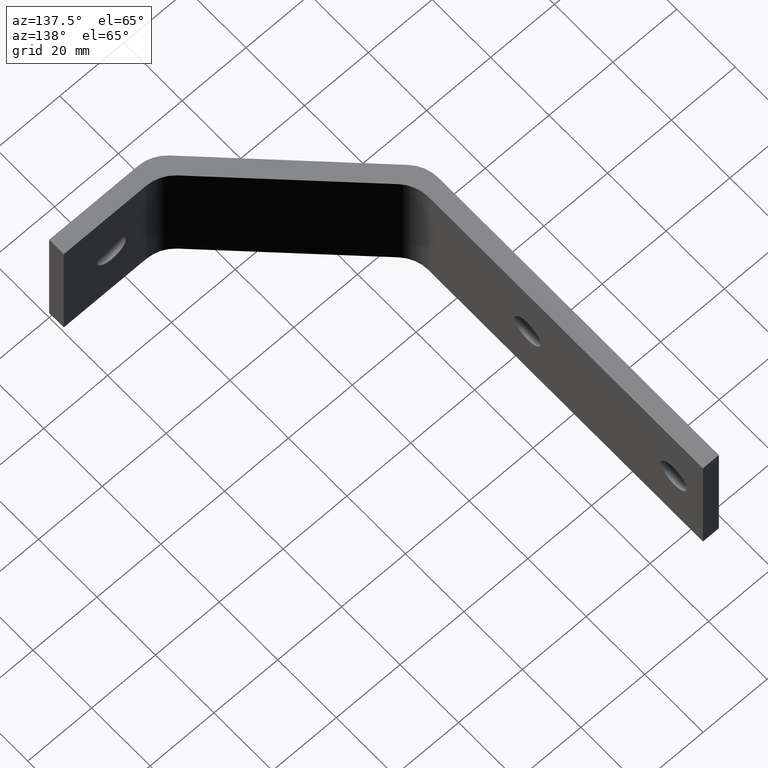
[diagram: clean part render]
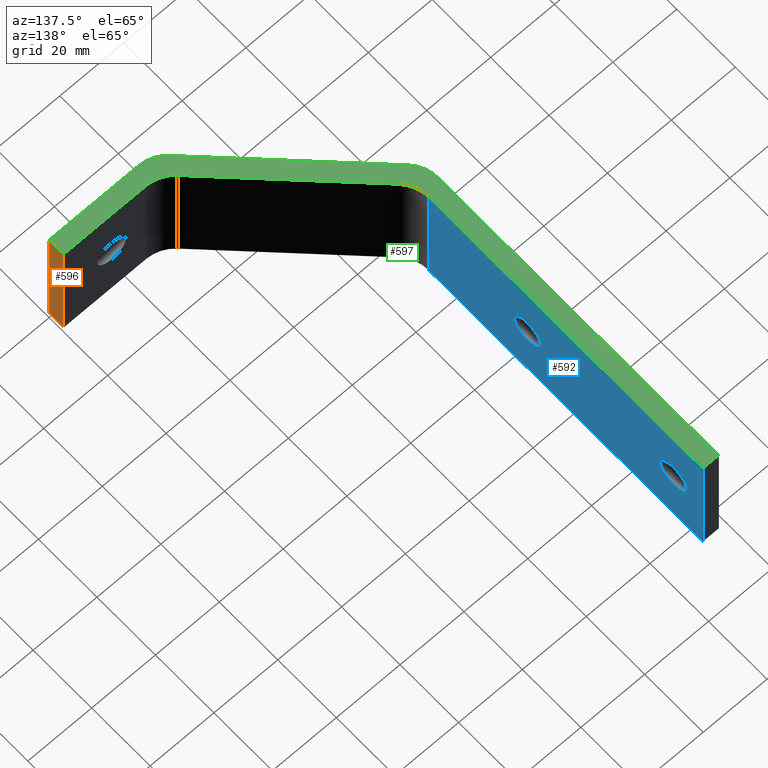
[diagram: same view with three faces highlighted in distinct colors, each labeled with its STEP entity id]
A machine part, auxiliary view with three faces highlighted in distinct colors.
Their STEP definitions:

[orange] entity #596 — the highlighted planar face has unit normal (-1, 0, 0).
#23 = VERTEX_POINT ( 'NONE', #228 ) ;
#24 = VERTEX_POINT ( 'NONE', #229 ) ;
#25 = VERTEX_POINT ( 'NONE', #230 ) ;
#26 = VERTEX_POINT ( 'NONE', #231 ) ;
#104 = AXIS2_PLACEMENT_3D ( 'NONE', #673, #674, #675 ) ;
#123 = EDGE_CURVE ( 'NONE', #26, #23, #390, .T. ) ;
#124 = EDGE_CURVE ( 'NONE', #23, #24, #388, .T. ) ;
#140 = EDGE_CURVE ( 'NONE', #25, #24, #357, .T. ) ;
#161 = EDGE_CURVE ( 'NONE', #25, #26, #313, .T. ) ;
#178 = CARTESIAN_POINT ( 'NONE',  ( 0.0000000000000000000, 5.000000000000000000, 20.00000000000000000 ) ) ;
#179 = DIRECTION ( 'NONE',  ( 0.0000000000000000000, 0.0000000000000000000, 1.000000000000000000 ) ) ;
#200 = DIRECTION ( 'NONE',  ( -0.0000000000000000000, -0.0000000000000000000, -1.000000000000000000 ) ) ;
#228 = CARTESIAN_POINT ( 'NONE',  ( -1.734723475976807100E-015, 0.0000000000000000000, 40.00000000000000000 ) ) ;
#229 = CARTESIAN_POINT ( 'NONE',  ( -1.734723475976807100E-015, 0.0000000000000000000, -1.156482317317871300E-015 ) ) ;
#230 = CARTESIAN_POINT ( 'NONE',  ( 0.0000000000000000000, 5.000000000000001800, 0.0000000000000000000 ) ) ;
#231 = CARTESIAN_POINT ( 'NONE',  ( 0.0000000000000000000, 5.000000000000001800, 40.00000000000000000 ) ) ;
#281 = FACE_OUTER_BOUND ( 'NONE', #293, .T. ) ;
#293 = EDGE_LOOP ( 'NONE', ( #427, #429, #430, #431 ) ) ;
#311 = VECTOR ( 'NONE', #179, 1000.000000000000000 ) ;
#313 = LINE ( 'NONE', #178, #311 ) ;
#355 = VECTOR ( 'NONE', #702, 1000.000000000000000 ) ;
#357 = LINE ( 'NONE', #701, #355 ) ;
#387 = VECTOR ( 'NONE', #200, 1000.000000000000000 ) ;
#388 = LINE ( 'NONE', #572, #387 ) ;
#389 = VECTOR ( 'NONE', #571, 1000.000000000000000 ) ;
#390 = LINE ( 'NONE', #570, #389 ) ;
#427 = ORIENTED_EDGE ( 'NONE', *, *, #161, .T. ) ;
#429 = ORIENTED_EDGE ( 'NONE', *, *, #123, .T. ) ;
#430 = ORIENTED_EDGE ( 'NONE', *, *, #124, .T. ) ;
#431 = ORIENTED_EDGE ( 'NONE', *, *, #140, .F. ) ;
#570 = CARTESIAN_POINT ( 'NONE',  ( 0.0000000000000000000, 72.50000000000000000, 40.00000000000000000 ) ) ;
#571 = DIRECTION ( 'NONE',  ( -0.0000000000000000000, -1.000000000000000000, -0.0000000000000000000 ) ) ;
#572 = CARTESIAN_POINT ( 'NONE',  ( 0.0000000000000000000, 0.0000000000000000000, 20.00000000000000000 ) ) ;
#596 = ADVANCED_FACE ( 'NONE', ( #281 ), #672, .F. ) ;
#672 = PLANE ( 'NONE',  #104 ) ;
#673 = CARTESIAN_POINT ( 'NONE',  ( 0.0000000000000000000, 0.0000000000000000000, 0.0000000000000000000 ) ) ;
#674 = DIRECTION ( 'NONE',  ( -1.000000000000000000, 0.0000000000000000000, 0.0000000000000000000 ) ) ;
#675 = DIRECTION ( 'NONE',  ( 0.0000000000000000000, 0.0000000000000000000, 1.000000000000000000 ) ) ;
#701 = CARTESIAN_POINT ( 'NONE',  ( 0.0000000000000000000, 72.50000000000000000, 0.0000000000000000000 ) ) ;
#702 = DIRECTION ( 'NONE',  ( -0.0000000000000000000, -1.000000000000000000, -0.0000000000000000000 ) ) ;

[blue] entity #592 — the highlighted planar face has unit normal (-1, 0, 0).
#1 = DIRECTION ( 'NONE',  ( 1.000000000000000000, -1.541976423090493900E-015, 0.0000000000000000000 ) ) ;
#2 = DIRECTION ( 'NONE',  ( 0.0000000000000000000, 1.000000000000000000, 0.0000000000000000000 ) ) ;
#9 = VERTEX_POINT ( 'NONE', #547 ) ;
#10 = VERTEX_POINT ( 'NONE', #548 ) ;
#16 = VERTEX_POINT ( 'NONE', #554 ) ;
#17 = VERTEX_POINT ( 'NONE', #555 ) ;
#19 = VERTEX_POINT ( 'NONE', #224 ) ;
#53 = AXIS2_PLACEMENT_3D ( 'NONE', #211, #212, #213 ) ;
#54 = AXIS2_PLACEMENT_3D ( 'NONE', #208, #209, #210 ) ;
#57 = AXIS2_PLACEMENT_3D ( 'NONE', #556, #557, #558 ) ;
#63 = AXIS2_PLACEMENT_3D ( 'NONE', #531, #1, #2 ) ;
#64 = EDGE_CURVE ( 'NONE', #9, #537, #415, .T. ) ;
#73 = EDGE_CURVE ( 'NONE', #538, #539, #401, .T. ) ;
#108 = AXIS2_PLACEMENT_3D ( 'NONE', #659, #660, #661 ) ;
#128 = EDGE_CURVE ( 'NONE', #539, #538, #377, .T. ) ;
#129 = EDGE_CURVE ( 'NONE', #537, #9, #376, .T. ) ;
#146 = EDGE_CURVE ( 'NONE', #17, #10, #342, .T. ) ;
#151 = EDGE_CURVE ( 'NONE', #16, #19, #335, .T. ) ;
#157 = EDGE_CURVE ( 'NONE', #10, #16, #323, .T. ) ;
#158 = EDGE_CURVE ( 'NONE', #17, #19, #320, .T. ) ;
#170 = CARTESIAN_POINT ( 'NONE',  ( -71.99999999499999600, 72.50000000000000000, 0.0000000000000000000 ) ) ;
#171 = DIRECTION ( 'NONE',  ( -0.0000000000000000000, -1.000000000000000000, -0.0000000000000000000 ) ) ;
#172 = CARTESIAN_POINT ( 'NONE',  ( -71.99999999499999600, 72.50000000000000000, 40.00000000000000000 ) ) ;
#173 = DIRECTION ( 'NONE',  ( -0.0000000000000000000, -1.000000000000000000, -0.0000000000000000000 ) ) ;
#190 = CARTESIAN_POINT ( 'NONE',  ( -72.00000000000001400, 139.5000000000000000, 20.00000000000000000 ) ) ;
#191 = CARTESIAN_POINT ( 'NONE',  ( -72.00000000000000000, 89.50000000000000000, 20.00000000000000000 ) ) ;
#192 = CARTESIAN_POINT ( 'NONE',  ( -72.00000000000002800, 80.49999999999998600, 20.00000000000000000 ) ) ;
#208 = CARTESIAN_POINT ( 'NONE',  ( -72.00000000000001400, 84.99999999999998600, 20.00000000000000000 ) ) ;
#209 = DIRECTION ( 'NONE',  ( 1.000000000000000000, -1.541976423090496200E-015, 0.0000000000000000000 ) ) ;
#210 = DIRECTION ( 'NONE',  ( 3.083952846180988100E-015, 1.000000000000000000, 0.0000000000000000000 ) ) ;
#211 = CARTESIAN_POINT ( 'NONE',  ( -72.00000000000001400, 135.0000000000000000, 20.00000000000000000 ) ) ;
#212 = DIRECTION ( 'NONE',  ( 1.000000000000000000, -1.541976423090493900E-015, 0.0000000000000000000 ) ) ;
#213 = DIRECTION ( 'NONE',  ( 0.0000000000000000000, 1.000000000000000000, 0.0000000000000000000 ) ) ;
#224 = CARTESIAN_POINT ( 'NONE',  ( -71.99999999749999800, 51.14213562194898100, 40.00000000000000000 ) ) ;
#297 = FACE_OUTER_BOUND ( 'NONE', #528, .T. ) ;
#298 = FACE_BOUND ( 'NONE', #527, .T. ) ;
#299 = FACE_BOUND ( 'NONE', #526, .T. ) ;
#319 = VECTOR ( 'NONE', #173, 1000.000000000000000 ) ;
#320 = LINE ( 'NONE', #172, #319 ) ;
#321 = VECTOR ( 'NONE', #171, 1000.000000000000000 ) ;
#323 = LINE ( 'NONE', #170, #321 ) ;
#334 = VECTOR ( 'NONE', #727, 1000.000000000000000 ) ;
#335 = LINE ( 'NONE', #726, #334 ) ;
#341 = VECTOR ( 'NONE', #714, 1000.000000000000000 ) ;
#342 = LINE ( 'NONE', #713, #341 ) ;
#376 = CIRCLE ( 'NONE', #53, 4.500000000000003600 ) ;
#377 = CIRCLE ( 'NONE', #54, 4.500000000000003600 ) ;
#401 = CIRCLE ( 'NONE', #57, 4.500000000000003600 ) ;
#415 = CIRCLE ( 'NONE', #63, 4.500000000000003600 ) ;
#512 = ORIENTED_EDGE ( 'NONE', *, *, #158, .T. ) ;
#513 = ORIENTED_EDGE ( 'NONE', *, *, #146, .F. ) ;
#514 = ORIENTED_EDGE ( 'NONE', *, *, #157, .F. ) ;
#515 = ORIENTED_EDGE ( 'NONE', *, *, #151, .F. ) ;
#516 = ORIENTED_EDGE ( 'NONE', *, *, #128, .F. ) ;
#517 = ORIENTED_EDGE ( 'NONE', *, *, #73, .F. ) ;
#518 = ORIENTED_EDGE ( 'NONE', *, *, #64, .F. ) ;
#519 = ORIENTED_EDGE ( 'NONE', *, *, #129, .F. ) ;
#526 = EDGE_LOOP ( 'NONE', ( #519, #518 ) ) ;
#527 = EDGE_LOOP ( 'NONE', ( #517, #516 ) ) ;
#528 = EDGE_LOOP ( 'NONE', ( #515, #514, #513, #512 ) ) ;
#531 = CARTESIAN_POINT ( 'NONE',  ( -72.00000000000001400, 135.0000000000000000, 20.00000000000000000 ) ) ;
#537 = VERTEX_POINT ( 'NONE', #190 ) ;
#538 = VERTEX_POINT ( 'NONE', #191 ) ;
#539 = VERTEX_POINT ( 'NONE', #192 ) ;
#547 = CARTESIAN_POINT ( 'NONE',  ( -72.00000000000001400, 130.5000000000000000, 20.00000000000000000 ) ) ;
#548 = CARTESIAN_POINT ( 'NONE',  ( -71.99999999666667300, 145.0000000000000000, 0.0000000000000000000 ) ) ;
#554 = CARTESIAN_POINT ( 'NONE',  ( -71.99999999749999800, 51.14213562194898100, 0.0000000000000000000 ) ) ;
#555 = CARTESIAN_POINT ( 'NONE',  ( -71.99999999750001200, 145.0000000000000000, 40.00000000000000700 ) ) ;
#556 = CARTESIAN_POINT ( 'NONE',  ( -72.00000000000001400, 84.99999999999998600, 20.00000000000000000 ) ) ;
#557 = DIRECTION ( 'NONE',  ( 1.000000000000000000, -1.541976423090496200E-015, 0.0000000000000000000 ) ) ;
#558 = DIRECTION ( 'NONE',  ( 3.083952846180988100E-015, 1.000000000000000000, 0.0000000000000000000 ) ) ;
#592 = ADVANCED_FACE ( 'NONE', ( #299, #298, #297 ), #658, .F. ) ;
#658 = PLANE ( 'NONE',  #108 ) ;
#659 = CARTESIAN_POINT ( 'NONE',  ( -72.00000000000001400, 51.14213562400001900, 0.0000000000000000000 ) ) ;
#660 = DIRECTION ( 'NONE',  ( -1.000000000000000000, 0.0000000000000000000, 0.0000000000000000000 ) ) ;
#661 = DIRECTION ( 'NONE',  ( 0.0000000000000000000, 0.0000000000000000000, 1.000000000000000000 ) ) ;
#713 = CARTESIAN_POINT ( 'NONE',  ( -72.00000000000001400, 145.0000000000000000, 20.00000000000000000 ) ) ;
#714 = DIRECTION ( 'NONE',  ( -0.0000000000000000000, -0.0000000000000000000, -1.000000000000000000 ) ) ;
#726 = CARTESIAN_POINT ( 'NONE',  ( -72.00000000000000000, 51.14213561989795000, 20.00000000000000000 ) ) ;
#727 = DIRECTION ( 'NONE',  ( 0.0000000000000000000, 0.0000000000000000000, 1.000000000000000000 ) ) ;

[green] entity #597 — the highlighted planar face has unit normal (0, 0, -1).
#7 = VERTEX_POINT ( 'NONE', #545 ) ;
#15 = VERTEX_POINT ( 'NONE', #553 ) ;
#17 = VERTEX_POINT ( 'NONE', #555 ) ;
#19 = VERTEX_POINT ( 'NONE', #224 ) ;
#21 = VERTEX_POINT ( 'NONE', #226 ) ;
#22 = VERTEX_POINT ( 'NONE', #227 ) ;
#23 = VERTEX_POINT ( 'NONE', #228 ) ;
#26 = VERTEX_POINT ( 'NONE', #231 ) ;
#28 = VERTEX_POINT ( 'NONE', #221 ) ;
#30 = VERTEX_POINT ( 'NONE', #529 ) ;
#35 = CARTESIAN_POINT ( 'NONE',  ( -35.00000000000000000, 2.928932188000000100, 40.00000000000000000 ) ) ;
#36 = DIRECTION ( 'NONE',  ( -0.7071067811865473500, 0.7071067811865477900, 0.0000000000000000000 ) ) ;
#48 = CARTESIAN_POINT ( 'NONE',  ( -27.92893218799999700, 10.00000000000000000, 40.00000000000000000 ) ) ;
#49 = DIRECTION ( 'NONE',  ( 0.0000000000000000000, -3.469446951953610700E-016, -1.000000000000000000 ) ) ;
#50 = AXIS2_PLACEMENT_3D ( 'NONE', #48, #49, #697 ) ;
#56 = AXIS2_PLACEMENT_3D ( 'NONE', #565, #566, #567 ) ;
#103 = AXIS2_PLACEMENT_3D ( 'NONE', #677, #678, #679 ) ;
#113 = AXIS2_PLACEMENT_3D ( 'NONE', #731, #162, #163 ) ;
#115 = AXIS2_PLACEMENT_3D ( 'NONE', #721, #722, #723 ) ;
#120 = EDGE_CURVE ( 'NONE', #26, #21, #396, .T. ) ;
#121 = EDGE_CURVE ( 'NONE', #28, #21, #392, .T. ) ;
#123 = EDGE_CURVE ( 'NONE', #26, #23, #390, .T. ) ;
#132 = EDGE_CURVE ( 'NONE', #7, #541, #372, .T. ) ;
#138 = EDGE_CURVE ( 'NONE', #22, #7, #359, .T. ) ;
#143 = EDGE_CURVE ( 'NONE', #30, #28, #350, .T. ) ;
#145 = EDGE_CURVE ( 'NONE', #22, #23, #345, .T. ) ;
#149 = EDGE_CURVE ( 'NONE', #19, #30, #337, .T. ) ;
#150 = EDGE_CURVE ( 'NONE', #540, #15, #338, .T. ) ;
#153 = EDGE_CURVE ( 'NONE', #541, #540, #331, .T. ) ;
#158 = EDGE_CURVE ( 'NONE', #17, #19, #320, .T. ) ;
#160 = EDGE_CURVE ( 'NONE', #15, #17, #315, .T. ) ;
#162 = DIRECTION ( 'NONE',  ( 0.0000000000000000000, -3.469446951953617100E-016, -1.000000000000000000 ) ) ;
#163 = DIRECTION ( 'NONE',  ( 0.0000000000000000000, 1.000000000000000000, -6.938893903907232300E-016 ) ) ;
#172 = CARTESIAN_POINT ( 'NONE',  ( -71.99999999499999600, 72.50000000000000000, 40.00000000000000000 ) ) ;
#173 = DIRECTION ( 'NONE',  ( -0.0000000000000000000, -1.000000000000000000, -0.0000000000000000000 ) ) ;
#176 = CARTESIAN_POINT ( 'NONE',  ( -38.50000000000000000, 145.0000000000000000, 40.00000000000000000 ) ) ;
#177 = DIRECTION ( 'NONE',  ( 1.000000000000000000, -0.0000000000000000000, -0.0000000000000000000 ) ) ;
#193 = CARTESIAN_POINT ( 'NONE',  ( -77.00000000000000000, 49.07106781199999500, 40.00000000000000000 ) ) ;
#194 = CARTESIAN_POINT ( 'NONE',  ( -74.07106781270299200, 42.00000000083753100, 40.00000000000000700 ) ) ;
#221 = CARTESIAN_POINT ( 'NONE',  ( -32.92893218788764600, 7.928932188022149500, 40.00000000000000000 ) ) ;
#224 = CARTESIAN_POINT ( 'NONE',  ( -71.99999999749999800, 51.14213562194898100, 40.00000000000000000 ) ) ;
#226 = CARTESIAN_POINT ( 'NONE',  ( -25.85786437600000600, 5.000000000000000900, 40.00000000000000000 ) ) ;
#227 = CARTESIAN_POINT ( 'NONE',  ( -27.92893218799999700, 1.734723475976807100E-015, 40.00000000000000700 ) ) ;
#228 = CARTESIAN_POINT ( 'NONE',  ( -1.734723475976807100E-015, 0.0000000000000000000, 40.00000000000000000 ) ) ;
#231 = CARTESIAN_POINT ( 'NONE',  ( 0.0000000000000000000, 5.000000000000001800, 40.00000000000000000 ) ) ;
#279 = FACE_OUTER_BOUND ( 'NONE', #292, .T. ) ;
#292 = EDGE_LOOP ( 'NONE', ( #432, #433, #434, #435, #436, #437, #438, #439, #471, #472, #473, #474 ) ) ;
#314 = VECTOR ( 'NONE', #177, 1000.000000000000000 ) ;
#315 = LINE ( 'NONE', #176, #314 ) ;
#319 = VECTOR ( 'NONE', #173, 1000.000000000000000 ) ;
#320 = LINE ( 'NONE', #172, #319 ) ;
#331 = CIRCLE ( 'NONE', #113, 9.999999999999994700 ) ;
#336 = VECTOR ( 'NONE', #725, 1000.000000000000000 ) ;
#337 = CIRCLE ( 'NONE', #115, 9.999999999999994700 ) ;
#338 = LINE ( 'NONE', #724, #336 ) ;
#344 = VECTOR ( 'NONE', #712, 1000.000000000000000 ) ;
#345 = LINE ( 'NONE', #711, #344 ) ;
#349 = VECTOR ( 'NONE', #708, 999.9999999999998900 ) ;
#350 = LINE ( 'NONE', #707, #349 ) ;
#359 = CIRCLE ( 'NONE', #50, 10.00000000000001100 ) ;
#371 = VECTOR ( 'NONE', #36, 1000.000000000000000 ) ;
#372 = LINE ( 'NONE', #35, #371 ) ;
#389 = VECTOR ( 'NONE', #571, 1000.000000000000000 ) ;
#390 = LINE ( 'NONE', #570, #389 ) ;
#392 = CIRCLE ( 'NONE', #56, 10.00000000000000500 ) ;
#394 = VECTOR ( 'NONE', #564, 1000.000000000000000 ) ;
#396 = LINE ( 'NONE', #563, #394 ) ;
#432 = ORIENTED_EDGE ( 'NONE', *, *, #138, .F. ) ;
#433 = ORIENTED_EDGE ( 'NONE', *, *, #145, .T. ) ;
#434 = ORIENTED_EDGE ( 'NONE', *, *, #123, .F. ) ;
#435 = ORIENTED_EDGE ( 'NONE', *, *, #120, .T. ) ;
#436 = ORIENTED_EDGE ( 'NONE', *, *, #121, .F. ) ;
#437 = ORIENTED_EDGE ( 'NONE', *, *, #143, .F. ) ;
#438 = ORIENTED_EDGE ( 'NONE', *, *, #149, .F. ) ;
#439 = ORIENTED_EDGE ( 'NONE', *, *, #158, .F. ) ;
#471 = ORIENTED_EDGE ( 'NONE', *, *, #160, .F. ) ;
#472 = ORIENTED_EDGE ( 'NONE', *, *, #150, .F. ) ;
#473 = ORIENTED_EDGE ( 'NONE', *, *, #153, .F. ) ;
#474 = ORIENTED_EDGE ( 'NONE', *, *, #132, .F. ) ;
#529 = CARTESIAN_POINT ( 'NONE',  ( -69.07106781199999500, 44.07106781200000300, 40.00000000000000000 ) ) ;
#540 = VERTEX_POINT ( 'NONE', #193 ) ;
#541 = VERTEX_POINT ( 'NONE', #194 ) ;
#545 = CARTESIAN_POINT ( 'NONE',  ( -35.00000000070299700, 2.928932188837515900, 40.00000000000000700 ) ) ;
#553 = CARTESIAN_POINT ( 'NONE',  ( -77.00000000000000000, 145.0000000000000000, 40.00000000000000000 ) ) ;
#555 = CARTESIAN_POINT ( 'NONE',  ( -71.99999999750001200, 145.0000000000000000, 40.00000000000000700 ) ) ;
#563 = CARTESIAN_POINT ( 'NONE',  ( -12.92893218800000300, 5.000000000000000000, 40.00000000000000000 ) ) ;
#564 = DIRECTION ( 'NONE',  ( -1.000000000000000000, -0.0000000000000000000, -0.0000000000000000000 ) ) ;
#565 = CARTESIAN_POINT ( 'NONE',  ( -25.85786437600000600, 15.00000000000000000, 40.00000000000000000 ) ) ;
#566 = DIRECTION ( 'NONE',  ( 0.0000000000000000000, -0.0000000000000000000, 1.000000000000000000 ) ) ;
#567 = DIRECTION ( 'NONE',  ( 1.000000000000000000, 0.0000000000000000000, 0.0000000000000000000 ) ) ;
#570 = CARTESIAN_POINT ( 'NONE',  ( 0.0000000000000000000, 72.50000000000000000, 40.00000000000000000 ) ) ;
#571 = DIRECTION ( 'NONE',  ( -0.0000000000000000000, -1.000000000000000000, -0.0000000000000000000 ) ) ;
#597 = ADVANCED_FACE ( 'NONE', ( #279 ), #676, .F. ) ;
#676 = PLANE ( 'NONE',  #103 ) ;
#677 = CARTESIAN_POINT ( 'NONE',  ( 0.0000000000000000000, 0.0000000000000000000, 40.00000000000000000 ) ) ;
#678 = DIRECTION ( 'NONE',  ( 0.0000000000000000000, 0.0000000000000000000, -1.000000000000000000 ) ) ;
#679 = DIRECTION ( 'NONE',  ( -1.000000000000000000, 0.0000000000000000000, 0.0000000000000000000 ) ) ;
#697 = DIRECTION ( 'NONE',  ( 0.0000000000000000000, 1.000000000000000000, -6.938893903907221500E-016 ) ) ;
#707 = CARTESIAN_POINT ( 'NONE',  ( -69.07106781199998100, 44.07106781199999500, 40.00000000000000000 ) ) ;
#708 = DIRECTION ( 'NONE',  ( 0.7071067811865472400, -0.7071067811865479100, 0.0000000000000000000 ) ) ;
#711 = CARTESIAN_POINT ( 'NONE',  ( -13.96446609399999900, 0.0000000000000000000, 40.00000000000000000 ) ) ;
#712 = DIRECTION ( 'NONE',  ( 1.000000000000000000, -0.0000000000000000000, -0.0000000000000000000 ) ) ;
#721 = CARTESIAN_POINT ( 'NONE',  ( -62.00000000000000000, 51.14213562400001900, 40.00000000000000000 ) ) ;
#722 = DIRECTION ( 'NONE',  ( 0.0000000000000000000, -0.0000000000000000000, 1.000000000000000000 ) ) ;
#723 = DIRECTION ( 'NONE',  ( 1.000000000000000000, 0.0000000000000000000, 0.0000000000000000000 ) ) ;
#724 = CARTESIAN_POINT ( 'NONE',  ( -77.00000000000000000, 72.50000000000000000, 40.00000000000000000 ) ) ;
#725 = DIRECTION ( 'NONE',  ( 0.0000000000000000000, 1.000000000000000000, 0.0000000000000000000 ) ) ;
#731 = CARTESIAN_POINT ( 'NONE',  ( -67.00000000000000000, 49.07106781199999500, 40.00000000000000000 ) ) ;